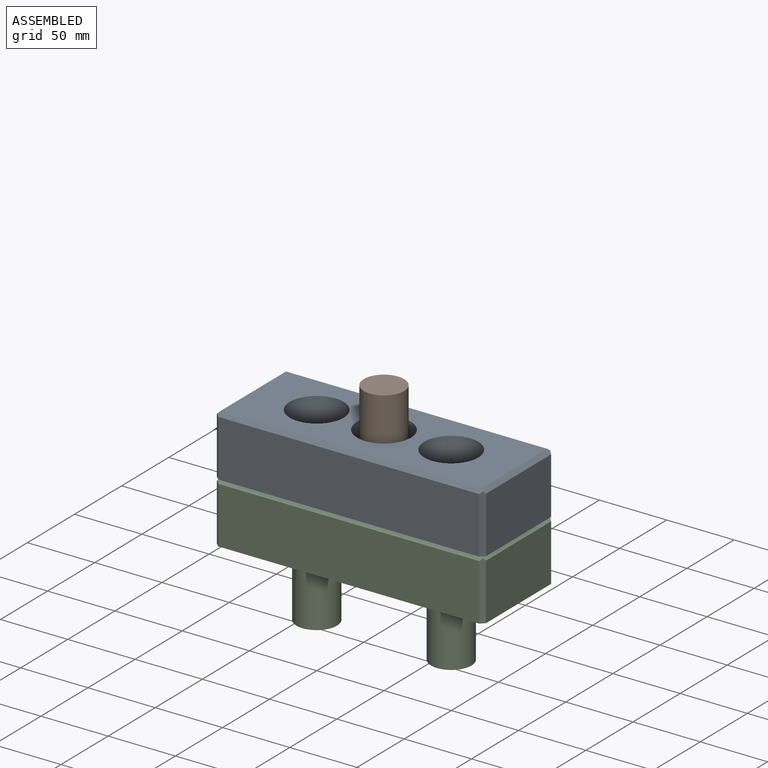
[diagram: assembled view]
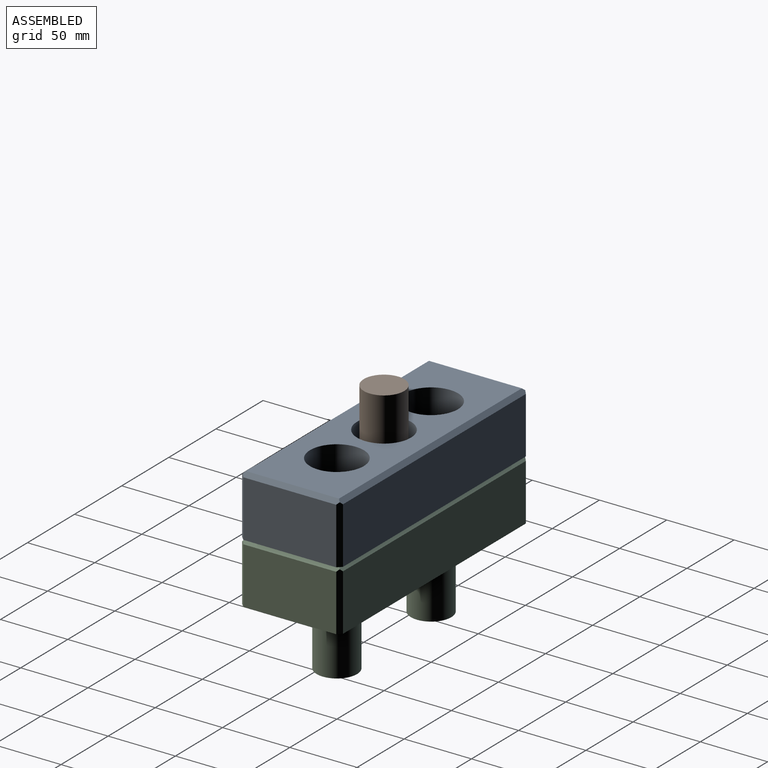
[diagram: assembled view, second angle]
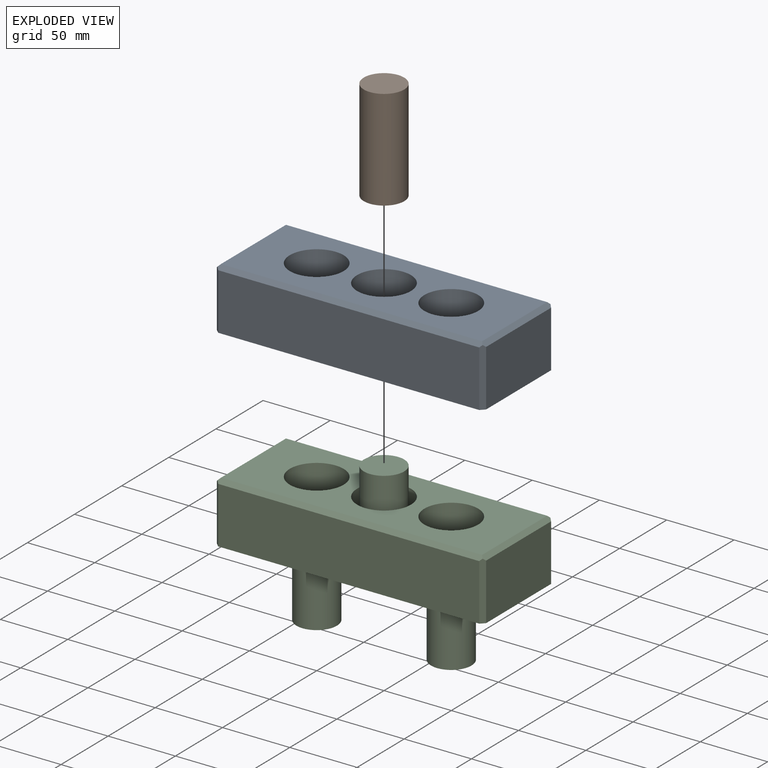
[diagram: exploded view]
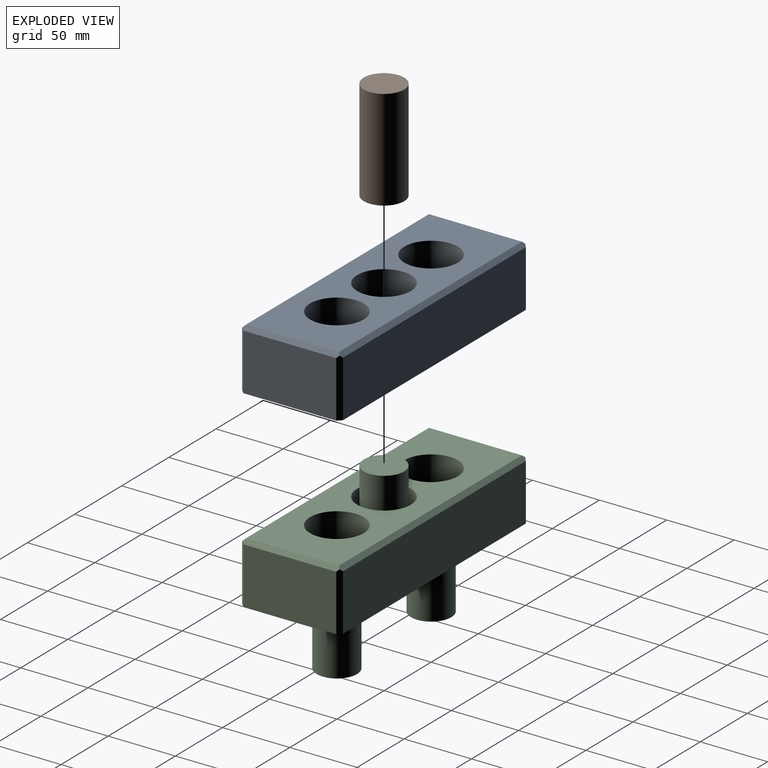
[diagram: exploded view, second angle]
FCSTD DOCUMENT  (FreeCAD 0.19R24267 (Git))
Label: AssemblyFile
License: All rights reserved
LicenseURL: http://en.wikipedia.org/wiki/All_rights_reserved
objects: PartDesign::CoordinateSystem×6, App::Link×5, Sketcher::SketchObject×4, PartDesign::Body×3, App::DocumentObjectGroup×2, PartDesign::Pad×2, PartDesign::Chamfer×2, App::FeaturePython×1, PartDesign::Pocket×1, App::Part×1
note: 23 computed .brp shape members not serialized (recipe doc carries the construction recipe); baked Part::Feature solids carry a one-line shape summary decoded from their .brp

FEATURE [PartDesign::CoordinateSystem] LCS_Origin
  AttacherType = Attacher::AttachEngine3D
  MapMode = 2
  Support = -> [X_Axis]
FEATURE [App::DocumentObjectGroup] Constraints
FEATURE [App::FeaturePython] Variables  # WARN: FeaturePython — macro-defined, semantics opaque (R4)
  Transform = 20
FEATURE [Sketcher::SketchObject] Sketch
  FullyConstrained = true
  MapMode = 5
  Support = -> [XY_Plane001]
  expr: Constraints[16] = 35 / 2
  sketch-geometry (7):
    g0: LineSegment StartX=-100 StartY=37.5 StartZ=0 EndX=100 EndY=37.5 EndZ=0
    g1: LineSegment StartX=100 StartY=37.5 StartZ=0 EndX=100 EndY=-37.5 EndZ=0
    g2: LineSegment StartX=100 StartY=-37.5 StartZ=0 EndX=-100 EndY=-37.5 EndZ=0
    g3: LineSegment StartX=-100 StartY=-37.5 StartZ=0 EndX=-100 EndY=37.5 EndZ=0
    g4: Circle CenterX=0 CenterY=0 CenterZ=0 NormalX=0 NormalY=0 NormalZ=1 AngleXU=0 Radius=17.5
    g5: Circle CenterX=-50 CenterY=0 CenterZ=0 NormalX=0 NormalY=0 NormalZ=1 AngleXU=0 Radius=17.5
    g6: Circle CenterX=50 CenterY=0 CenterZ=0 NormalX=0 NormalY=0 NormalZ=1 AngleXU=0 Radius=17.5
  constraints (18):
    c: Coincident(g0,g1)
    c: Coincident(g1,g2)
    c: Coincident(g2,g3)
    c: Coincident(g3,g0)
    c: Horizontal(g0)
    c: Horizontal(g2)
    c: Vertical(g1)
    c: Vertical(g3)
    c: Symmetric(g0,g1,g-1)
    c: DistanceX(g0,g0) = 200
    c: DistanceY(g3,g3) = 75
    c: Coincident(g4,g-1)
    c: PointOnObject(g5,g-1)
    c: Equal(g5,g4)
    c: Equal(g4,g6)
    c: Symmetric(g5,g6,g-2)
    c: Radius(g5) = 17.5
    c: DistanceX(g5,g4) = 50
FEATURE [PartDesign::CoordinateSystem] CircleLeft
  AttacherType = Attacher::AttachEngine3D
  AttachmentOffset = pos=(0,0,0) rot=(0,0,1;1.5708rad)
  MapMode = 11
  Placement = pos=(-50,0,0) rot=(0,0,1;3.14159rad)
  Support = -> [Sketch]
FEATURE [PartDesign::CoordinateSystem] CircleCenter
  AttacherType = Attacher::AttachEngine3D
  AttachmentOffset = pos=(0,0,0) rot=(0,0,1;1.5708rad)
  MapMode = 11
  Placement = pos=(0,0,0) rot=(0,0,1;3.14159rad)
  Support = -> [Sketch]
FEATURE [PartDesign::CoordinateSystem] CircleRight
  AttacherType = Attacher::AttachEngine3D
  AttachmentOffset = pos=(0,0,0) rot=(0,0,1;1.5708rad)
  MapMode = 11
  Placement = pos=(50,0,0) rot=(0,0,1;3.14159rad)
  Support = -> [Sketch]
FEATURE [PartDesign::Body] Body  label="MasterSketchBody"
  Group = -> [Sketch,CircleLeft,CircleCenter,CircleRight]
  Origin = -> Origin001
FEATURE [Sketcher::SketchObject] Sketch001
  FullyConstrained = true
  MapMode = 5
  Support = -> [XY_Plane002]
  expr: Constraints[17] = 40 / 2
  sketch-geometry (7):
    g0: LineSegment StartX=-100 StartY=37.5 StartZ=0 EndX=100 EndY=37.5 EndZ=0
    g1: LineSegment StartX=100 StartY=37.5 StartZ=0 EndX=100 EndY=-37.5 EndZ=0
    g2: LineSegment StartX=100 StartY=-37.5 StartZ=0 EndX=-100 EndY=-37.5 EndZ=0
    g3: LineSegment StartX=-100 StartY=-37.5 StartZ=0 EndX=-100 EndY=37.5 EndZ=0
    g4: Circle CenterX=0 CenterY=0 CenterZ=0 NormalX=0 NormalY=0 NormalZ=1 AngleXU=0 Radius=20
    g5: Circle CenterX=-50 CenterY=0 CenterZ=0 NormalX=0 NormalY=0 NormalZ=1 AngleXU=0 Radius=20
    g6: Circle CenterX=50 CenterY=0 CenterZ=0 NormalX=0 NormalY=0 NormalZ=1 AngleXU=0 Radius=20
  constraints (18):
    c: Coincident(g0,g1)
    c: Coincident(g1,g2)
    c: Coincident(g2,g3)
    c: Coincident(g3,g0)
    c: Horizontal(g0)
    c: Horizontal(g2)
    c: Vertical(g1)
    c: Vertical(g3)
    c: Symmetric(g0,g1,g-1)
    c: Coincident(g4,g-1)
    c: PointOnObject(g5,g-1)
    c: DistanceX(g0,g0) = 200
    c: DistanceY(g3,g3) = 75
    c: Equal(g5,g4)
    c: Equal(g4,g6)
    c: Symmetric(g5,g6,g-2)
    c: DistanceX(g5,g4) = 50
    c: Radius(g5) = 20
FEATURE [PartDesign::Pad] Pad
  Direction = (1,1,1)
  Length = 45
  Length2 = 100
  Profile = -> Sketch001
  Type = 0
FEATURE [PartDesign::Chamfer] Chamfer
  Angle = 45
  Base = -> Pad [Edge7,Edge4,Edge12,Edge10]
  BaseFeature = -> Pad
  ChamferType = 0
  FlipDirection = false
  Size = 3
  Size2 = 1
  SupportTransform = false
FEATURE [PartDesign::Chamfer] Chamfer001
  Angle = 45
  Base = -> Chamfer [Edge4,Edge17,Edge5,Edge1]
  BaseFeature = -> Chamfer
  ChamferType = 0
  FlipDirection = false
  Size = 3
  Size2 = 1
  SupportTransform = false
FEATURE [PartDesign::CoordinateSystem] MainBodyLCS
  AttacherType = Attacher::AttachEngine3D
  AttachmentOffset = pos=(0,0,0) rot=(0,0,1;1.5708rad)
  MapMode = 11
  Placement = pos=(0,0,45) rot=(0,0,1;3.14159rad)
  Support = -> [Chamfer001]
FEATURE [PartDesign::Body] Body001  label="MainBody"
  Group = -> [Sketch001,Pad,Chamfer,Chamfer001,MainBodyLCS]
  Origin = -> Origin002
  Tip = -> Chamfer001
FEATURE [Sketcher::SketchObject] Sketch002  label="RodSketch"
  FullyConstrained = true
  MapMode = 5
  Support = -> [XY_Plane003]
  expr: Constraints[1] = 25 / 2
  sketch-geometry (1):
    g0: Circle CenterX=0 CenterY=0 CenterZ=0 NormalX=0 NormalY=0 NormalZ=1 AngleXU=0 Radius=12.5
  constraints (2):
    c: Coincident(g0,g-1)
    c: Radius(g0) = 12.5
FEATURE [Sketcher::SketchObject] Sketch003  label="RodSketch0"
  FullyConstrained = true
  MapMode = 5
  Support = -> [XY_Plane003]
  expr: Constraints[1] = 30 / 2
  sketch-geometry (1):
    g0: Circle CenterX=0 CenterY=0 CenterZ=0 NormalX=0 NormalY=0 NormalZ=1 AngleXU=0 Radius=15
  constraints (2):
    c: Coincident(g0,g-1)
    c: Radius(g0) = 15
FEATURE [PartDesign::Pad] Pad001  label="RodPad"
  Direction = (1,1,1)
  Length = 75
  Length2 = 100
  Profile = -> Sketch003
  Type = 0
FEATURE [PartDesign::Pocket] Pocket  label="RodPocket"
  BaseFeature = -> Pad001
  Length = 65
  Length2 = 100
  Profile = -> Sketch002
  Reversed = true
  Type = 0
FEATURE [PartDesign::CoordinateSystem] RodLCS
  AttacherType = Attacher::AttachEngine3D
  AttachmentOffset = pos=(0,0,0) rot=(0,0,1;1.5708rad)
  MapMode = 11
  Placement = pos=(0,0,75) rot=(0,0,1;3.14159rad)
  Support = -> [Pocket]
FEATURE [PartDesign::Body] Body002  label="RodBody"
  Group = -> [Sketch003,Pad001,Sketch002,Pocket,RodLCS]
  Origin = -> Origin003
  Tip = -> Pocket
FEATURE [App::DocumentObjectGroup] Parts
  Group = -> [Body,Body001,Body002]
FEATURE [App::Link] MasterSketchBody  label="MasterSketchBody001"
  AssemblyType = Asm4EE
  AttachedBy = #CircleCenter
  AttachedTo = Parent Assembly#LCS_Origin
  LinkPlacement = pos=(0,0,0) rot=(0,0,-1;3.14159rad)
  LinkedObject = -> Body
  Placement = pos=(0,0,0) rot=(0,0,-1;3.14159rad)
  expr: Placement = LCS_Origin.Placement * AttachmentOffset * CircleCenter.Placement ^ -1
FEATURE [App::Link] RodBodyCenter
  AssemblyType = Asm4EE
  AttachedBy = #RodLCS
  AttachedTo = MasterSketchBody#CircleCenter
  AttachmentOffset = pos=(0,0,20) rot=(0,0,1;0rad)
  LinkPlacement = pos=(0,0,-54) rot=(0,0,-1;3.14159rad)
  LinkedObject = -> Body002
  Placement = pos=(0,0,-54) rot=(0,0,-1;3.14159rad)
  expr: Placement = MasterSketchBody.Placement * CircleCenter.Placement * AttachmentOffset * RodLCS.Placement ^ -1
  expr: .AttachmentOffset.Base.z = Variables.Transform
FEATURE [App::Link] RodBodyLeft
  AssemblyType = Asm4EE
  AttachedBy = #RodLCS
  AttachedTo = MasterSketchBody#CircleLeft
  AttachmentOffset = pos=(0,0,-20) rot=(0,0,1;0rad)
  LinkPlacement = pos=(50,2.83e-14,-96) rot=(0,0,-1;3.14159rad)
  LinkedObject = -> Body002
  Placement = pos=(50,2.83e-14,-96) rot=(0,0,-1;3.14159rad)
  expr: Placement = MasterSketchBody.Placement * CircleLeft.Placement * AttachmentOffset * RodLCS.Placement ^ -1
  expr: .AttachmentOffset.Base.z = -Variables.Transform
FEATURE [App::Link] RodBodyRight
  AssemblyType = Asm4EE
  AttachedBy = #RodLCS
  AttachedTo = MasterSketchBody#CircleRight
  AttachmentOffset = pos=(0,0,-20) rot=(0,0,1;0rad)
  LinkPlacement = pos=(-50,-2.83e-14,-96) rot=(0,0,-1;3.14159rad)
  LinkedObject = -> Body002
  Placement = pos=(-50,-2.83e-14,-96) rot=(0,0,-1;3.14159rad)
  expr: Placement = MasterSketchBody.Placement * CircleRight.Placement * AttachmentOffset * RodLCS.Placement ^ -1
  expr: .AttachmentOffset.Base.z = -Variables.Transform
FEATURE [App::Link] MainBody  label="MainBody001"
  AssemblyType = Asm4EE
  AttachedBy = #MainBodyLCS
  AttachedTo = MasterSketchBody#CircleCenter
  LinkPlacement = pos=(0,0,-45) rot=(0,0,-1;3.14159rad)
  LinkedObject = -> Body001
  Placement = pos=(0,0,-45) rot=(0,0,-1;3.14159rad)
  expr: Placement = MasterSketchBody.Placement * CircleCenter.Placement * AttachmentOffset * MainBodyLCS.Placement ^ -1
FEATURE [App::Part] Model
  Configuration = 0
  Group = -> [LCS_Origin,Constraints,Variables,MasterSketchBody,RodBodyCenter,RodBodyLeft,RodBodyRight,MainBody]
  Origin = -> Origin
  Type = Assembly4 Model
